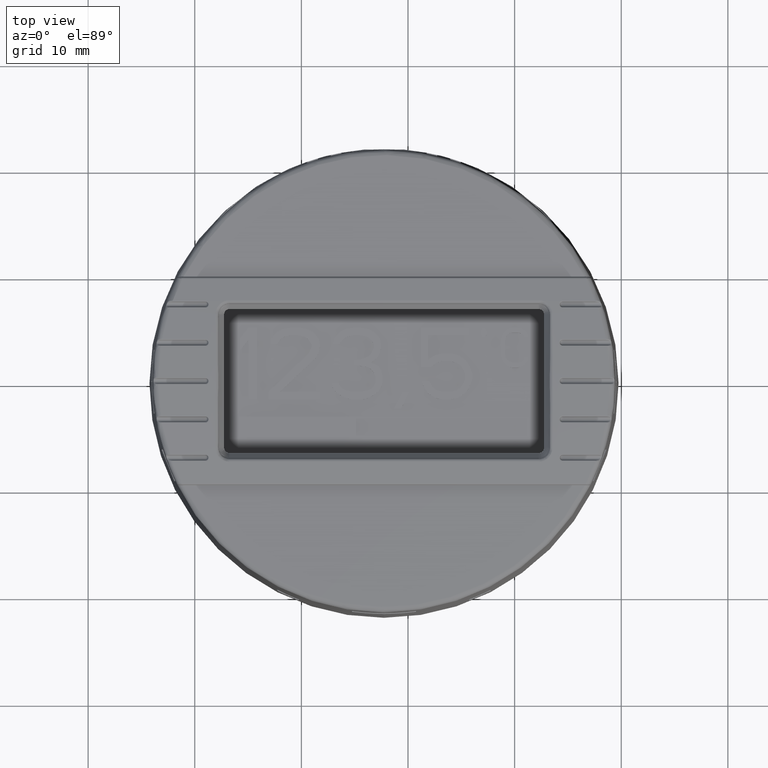
[diagram: clean part render]
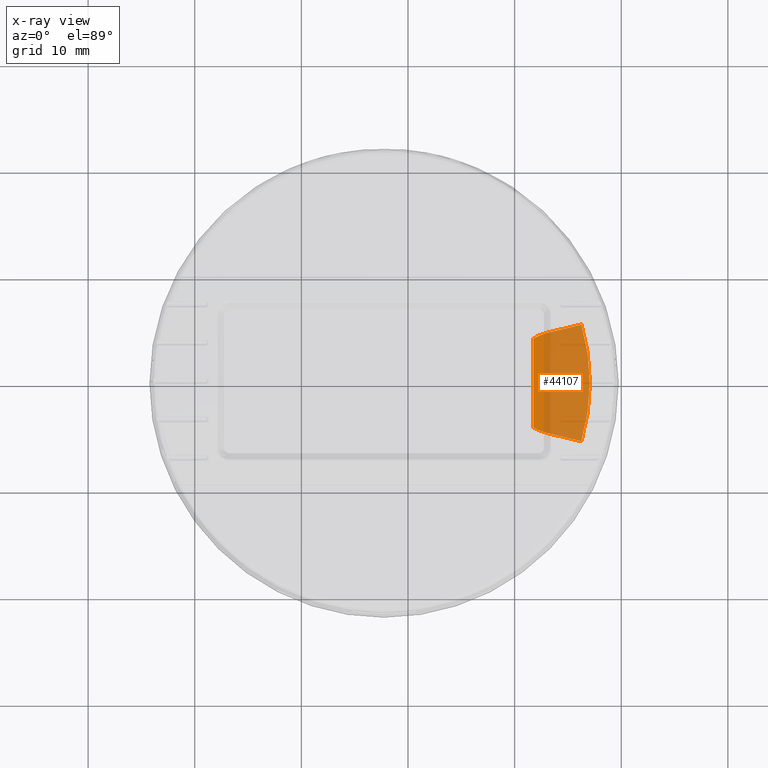
[diagram: x-ray — body ghosted, one internal face saturated and labeled with its STEP entity id]
A machine part, top view, then the same camera in x-ray: the body is ghosted and one INTERNAL B-rep face — a face not visible from any outside direction — is saturated and labeled: STEP entity #44107.
In plain terms, the highlighted planar face has unit normal (0, -0, 1).
Its self-contained STEP definition (entity closure, byte-faithful):
#3745 = VERTEX_POINT ( 'NONE', #35698 ) ;
#6546 = EDGE_CURVE ( 'NONE', #27145, #39299, #40705, .T. ) ;
#9521 = CARTESIAN_POINT ( 'NONE',  ( 0.4625984251968504046, -0.1637077461475700824, -0.07086614173228346358 ) ) ;
#9625 = CARTESIAN_POINT ( 'NONE',  ( 0.6400821354089605286, -0.2154257311403350306, -0.07086614173228346358 ) ) ;
#9910 = CARTESIAN_POINT ( 'NONE',  ( -0.08858267716535432601, 0.000000000000000000, -0.07086614173228346358 ) ) ;
#10112 = DIRECTION ( 'NONE',  ( 0.9723699203976791106, 0.2334453638558950661, 0.000000000000000000 ) ) ;
#10243 = DIRECTION ( 'NONE',  ( 1.430154692325157619E-14, 1.000000000000000000, 0.000000000000000000 ) ) ;
#12600 = AXIS2_PLACEMENT_3D ( 'NONE', #54626, #49301, #10243 ) ;
#13422 = CARTESIAN_POINT ( 'NONE',  ( 0.5610236220472440971, 0.000000000000000000, -0.07086614173228346358 ) ) ;
#14515 = VECTOR ( 'NONE', #10112, 39.37007874015748143 ) ;
#17326 = CARTESIAN_POINT ( 'NONE',  ( 0.5164314354605961110, -0.1857398245373539647, -0.07086614173228346358 ) ) ;
#18134 = LINE ( 'NONE', #54485, #38179 ) ;
#19243 = DIRECTION ( 'NONE',  ( -0.000000000000000000, -0.000000000000000000, 1.000000000000000000 ) ) ;
#21397 = ORIENTED_EDGE ( 'NONE', *, *, #28981, .F. ) ;
#22817 = ORIENTED_EDGE ( 'NONE', *, *, #29715, .T. ) ;
#26739 = CARTESIAN_POINT ( 'NONE',  ( 0.6400821354089546444, 0.2154257311403551256, -0.07086614173228346358 ) ) ;
#26746 = VECTOR ( 'NONE', #59149, 39.37007874015748143 ) ;
#26933 = FACE_OUTER_BOUND ( 'NONE', #50361, .T. ) ;
#27145 = VERTEX_POINT ( 'NONE', #9625 ) ;
#28765 = DIRECTION ( 'NONE',  ( 0.000000000000000000, -1.000000000000000000, 0.000000000000000000 ) ) ;
#28981 = EDGE_CURVE ( 'NONE', #39299, #41240, #56289, .T. ) ;
#29447 = ORIENTED_EDGE ( 'NONE', *, *, #60259, .F. ) ;
#29715 = EDGE_CURVE ( 'NONE', #3745, #41240, #18134, .T. ) ;
#31317 = AXIS2_PLACEMENT_3D ( 'NONE', #13422, #36128, #62111 ) ;
#31411 = CARTESIAN_POINT ( 'NONE',  ( 0.6975772118535432664, 0.2292290777464172924, -0.07086614173228346358 ) ) ;
#31566 = DIRECTION ( 'NONE',  ( 0.000000000000000000, 1.000000000000000000, 0.000000000000000000 ) ) ;
#32250 = PLANE ( 'NONE',  #41226 ) ;
#35698 = CARTESIAN_POINT ( 'NONE',  ( 0.4625984251968504046, 0.1637077461475700824, -0.07086614173228346358 ) ) ;
#36128 = DIRECTION ( 'NONE',  ( -0.000000000000000000, -0.000000000000000000, -1.000000000000000000 ) ) ;
#37001 = EDGE_CURVE ( 'NONE', #65427, #49551, #47775, .T. ) ;
#37197 = ORIENTED_EDGE ( 'NONE', *, *, #37001, .F. ) ;
#38179 = VECTOR ( 'NONE', #28765, 39.37007874015748143 ) ;
#39299 = VERTEX_POINT ( 'NONE', #17326 ) ;
#40705 = LINE ( 'NONE', #46389, #26746 ) ;
#40972 = CIRCLE ( 'NONE', #12600, 0.1910176576229527801 ) ;
#41226 = AXIS2_PLACEMENT_3D ( 'NONE', #9910, #58954, #31566 ) ;
#41240 = VERTEX_POINT ( 'NONE', #9521 ) ;
#42448 = EDGE_CURVE ( 'NONE', #27145, #49551, #69591, .T. ) ;
#44107 = ADVANCED_FACE ( 'NONE', ( #26933 ), #32250, .T. ) ;
#45520 = ORIENTED_EDGE ( 'NONE', *, *, #6546, .F. ) ;
#46389 = CARTESIAN_POINT ( 'NONE',  ( 0.5164314354606299728, -0.1857398245373622081, -0.07086614173228346358 ) ) ;
#47312 = CARTESIAN_POINT ( 'NONE',  ( -0.08858267716535432601, 0.000000000000000000, -0.07086614173228346358 ) ) ;
#47775 = LINE ( 'NONE', #31411, #14515 ) ;
#49189 = AXIS2_PLACEMENT_3D ( 'NONE', #47312, #19243, #62605 ) ;
#49301 = DIRECTION ( 'NONE',  ( -0.000000000000000000, -0.000000000000000000, -1.000000000000000000 ) ) ;
#49551 = VERTEX_POINT ( 'NONE', #26739 ) ;
#50361 = EDGE_LOOP ( 'NONE', ( #45520, #69321, #37197, #29447, #22817, #21397 ) ) ;
#54485 = CARTESIAN_POINT ( 'NONE',  ( 0.4625984251968504046, -0.1181102362204724532, -0.07086614173228346358 ) ) ;
#54626 = CARTESIAN_POINT ( 'NONE',  ( 0.5610236220472440971, 0.000000000000000000, -0.07086614173228346358 ) ) ;
#56289 = CIRCLE ( 'NONE', #31317, 0.1910176576229527801 ) ;
#58954 = DIRECTION ( 'NONE',  ( 0.000000000000000000, -0.000000000000000000, 1.000000000000000000 ) ) ;
#59149 = DIRECTION ( 'NONE',  ( -0.9723699203976791106, 0.2334453638558950661, 0.000000000000000000 ) ) ;
#60259 = EDGE_CURVE ( 'NONE', #3745, #65427, #40972, .T. ) ;
#62111 = DIRECTION ( 'NONE',  ( 0.000000000000000000, 1.000000000000000000, 0.000000000000000000 ) ) ;
#62605 = DIRECTION ( 'NONE',  ( 0.000000000000000000, -1.000000000000000000, 0.000000000000000000 ) ) ;
#63624 = CARTESIAN_POINT ( 'NONE',  ( 0.5164314354605866741, 0.1857398245373941270, -0.07086614173228346358 ) ) ;
#65427 = VERTEX_POINT ( 'NONE', #63624 ) ;
#69321 = ORIENTED_EDGE ( 'NONE', *, *, #42448, .T. ) ;
#69591 = CIRCLE ( 'NONE', #49189, 0.7598425196850394636 ) ;